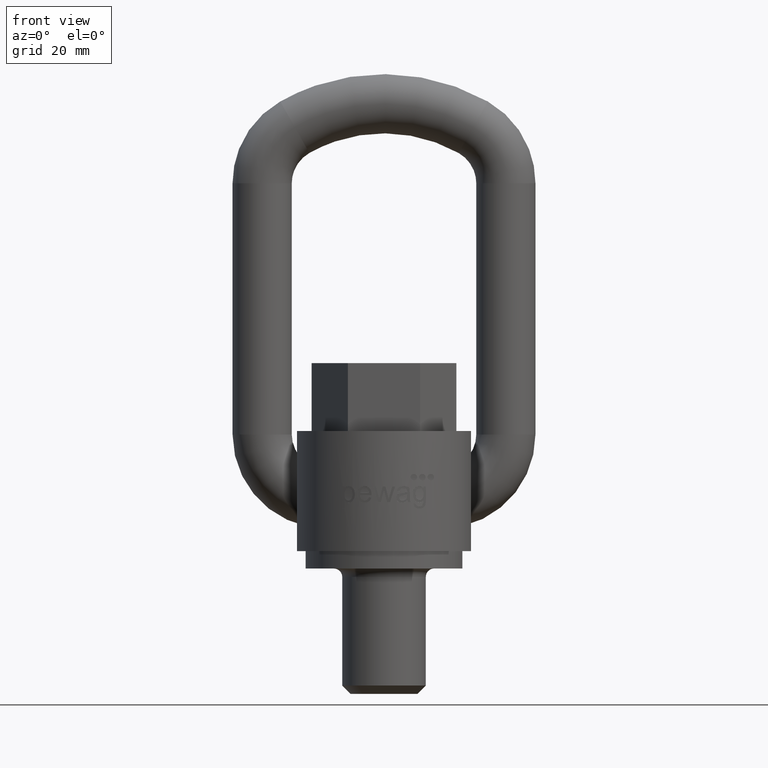
[diagram: clean part render]
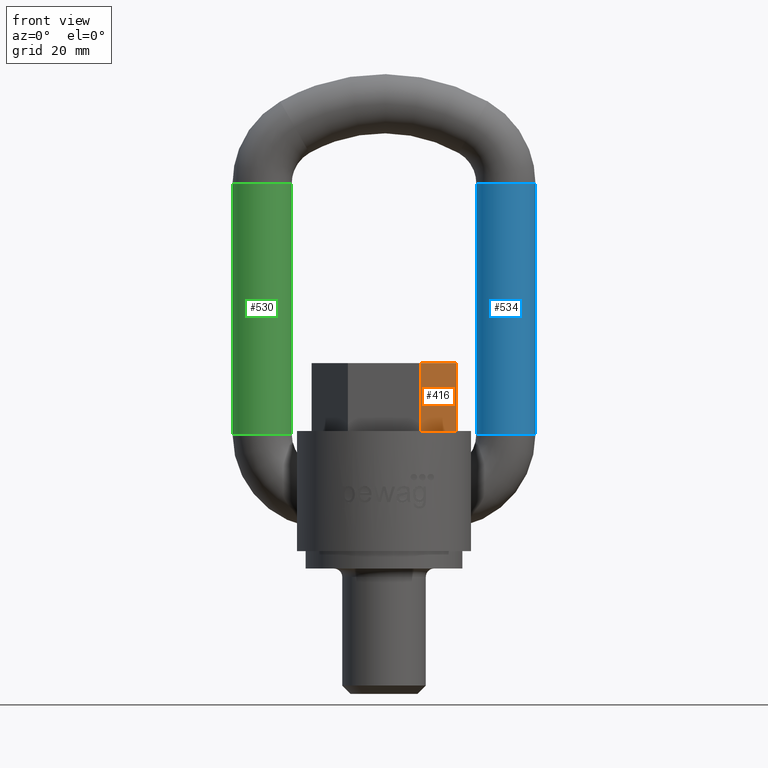
[diagram: same view with three faces highlighted in distinct colors, each labeled with its STEP entity id]
A machine part, front view with three faces highlighted in distinct colors.
Their STEP definitions:

[orange] entity #416 — the highlighted planar face has unit normal (-0.866, 0.5, 0).
#249=FACE_OUTER_BOUND('',#647,.T.);
#354=PLANE('',#2462);
#416=ADVANCED_FACE('',(#249),#354,.F.);
#647=EDGE_LOOP('',(#1232,#1233,#1234,#1235));
#803=LINE('',#3830,#929);
#808=LINE('',#3840,#934);
#810=LINE('',#3844,#936);
#811=LINE('',#3846,#937);
#929=VECTOR('',#2652,1.);
#934=VECTOR('',#2661,1.);
#936=VECTOR('',#2665,1.);
#937=VECTOR('',#2666,1.);
#1232=ORIENTED_EDGE('',*,*,#2026,.T.);
#1233=ORIENTED_EDGE('',*,*,#2033,.F.);
#1234=ORIENTED_EDGE('',*,*,#2034,.F.);
#1235=ORIENTED_EDGE('',*,*,#2031,.T.);
#1812=VERTEX_POINT('',#3829);
#1813=VERTEX_POINT('',#3831);
#1816=VERTEX_POINT('',#3841);
#1817=VERTEX_POINT('',#3845);
#2026=EDGE_CURVE('',#1813,#1812,#803,.T.);
#2031=EDGE_CURVE('',#1816,#1813,#808,.T.);
#2033=EDGE_CURVE('',#1817,#1812,#810,.T.);
#2034=EDGE_CURVE('',#1816,#1817,#811,.T.);
#2462=AXIS2_PLACEMENT_3D('',#3847,#2667,#2668);
#2652=DIRECTION('',(0.5,0.866025403784438,0.));
#2661=DIRECTION('',(0.,0.,-1.));
#2665=DIRECTION('',(0.,0.,-1.));
#2666=DIRECTION('',(0.5,0.866025403784438,0.));
#2667=DIRECTION('',(-0.866025403784439,0.5,0.));
#2668=DIRECTION('',(-0.5,-0.866025403784439,0.));
#3829=CARTESIAN_POINT('',(20.7846096908265,-2.08166817117217E-14,34.5));
#3830=CARTESIAN_POINT('',(10.3923048454133,-18.,34.5));
#3831=CARTESIAN_POINT('',(10.3923048454133,-18.,34.5));
#3840=CARTESIAN_POINT('',(10.3923048454133,-18.,54.));
#3841=CARTESIAN_POINT('',(10.3923048454133,-18.,54.));
#3844=CARTESIAN_POINT('',(20.7846096908265,-2.08166817117217E-14,54.));
#3845=CARTESIAN_POINT('',(20.7846096908265,-2.08166817117217E-14,54.));
#3846=CARTESIAN_POINT('',(10.3923048454133,-18.,54.));
#3847=CARTESIAN_POINT('',(10.3923048454133,-18.,54.));

[blue] entity #534 — the highlighted cylindrical surface (bore or boss wall) has radius 8.5 mm, axis along (0, 0, -1).
#534=ADVANCED_FACE('',(#623,#624),#552,.T.);
#552=CYLINDRICAL_SURFACE('',#2549,8.5);
#623=FACE_BOUND('',#785,.T.);
#624=FACE_BOUND('',#786,.T.);
#785=EDGE_LOOP('',(#1726));
#786=EDGE_LOOP('',(#1727));
#1113=CIRCLE('',#2535,8.5);
#1119=CIRCLE('',#2547,8.5);
#1726=ORIENTED_EDGE('',*,*,#2241,.F.);
#1727=ORIENTED_EDGE('',*,*,#2235,.T.);
#1931=VERTEX_POINT('',#5181);
#1937=VERTEX_POINT('',#5199);
#2235=EDGE_CURVE('',#1931,#1931,#1113,.T.);
#2241=EDGE_CURVE('',#1937,#1937,#1119,.T.);
#2535=AXIS2_PLACEMENT_3D('',#5180,#2959,#2960);
#2547=AXIS2_PLACEMENT_3D('',#5198,#2983,#2984);
#2549=AXIS2_PLACEMENT_3D('',#5201,#2987,#2988);
#2959=DIRECTION('',(1.6212657631587E-15,0.,1.));
#2960=DIRECTION('',(1.,0.,-1.63268091856641E-15));
#2983=DIRECTION('',(1.6212657631587E-15,0.,1.));
#2984=DIRECTION('',(1.,0.,-1.63268091856641E-15));
#2987=DIRECTION('',(0.,0.,-1.));
#2988=DIRECTION('',(-1.,0.,0.));
#5180=CARTESIAN_POINT('',(35.,27.5,33.4999999999999));
#5181=CARTESIAN_POINT('',(43.5,27.5,33.4999999999999));
#5198=CARTESIAN_POINT('',(35.,27.5,105.654759474226));
#5199=CARTESIAN_POINT('',(43.5,27.5,105.654759474226));
#5201=CARTESIAN_POINT('',(35.,27.5,105.654759474226));

[green] entity #530 — the highlighted cylindrical surface (bore or boss wall) has radius 8.5 mm, axis along (0, 0, -1).
#530=ADVANCED_FACE('',(#615,#616),#551,.T.);
#551=CYLINDRICAL_SURFACE('',#2542,8.5);
#615=FACE_BOUND('',#777,.T.);
#616=FACE_BOUND('',#778,.T.);
#777=EDGE_LOOP('',(#1718));
#778=EDGE_LOOP('',(#1719));
#1115=CIRCLE('',#2539,8.5);
#1116=CIRCLE('',#2541,8.5);
#1718=ORIENTED_EDGE('',*,*,#2238,.T.);
#1719=ORIENTED_EDGE('',*,*,#2237,.F.);
#1933=VERTEX_POINT('',#5187);
#1934=VERTEX_POINT('',#5190);
#2237=EDGE_CURVE('',#1933,#1933,#1115,.T.);
#2238=EDGE_CURVE('',#1934,#1934,#1116,.T.);
#2539=AXIS2_PLACEMENT_3D('',#5186,#2967,#2968);
#2541=AXIS2_PLACEMENT_3D('',#5189,#2971,#2972);
#2542=AXIS2_PLACEMENT_3D('',#5191,#2973,#2974);
#2967=DIRECTION('',(-6.10622663543836E-16,0.,-1.));
#2968=DIRECTION('',(-1.,0.,8.16340459283203E-16));
#2971=DIRECTION('',(-6.10622663543836E-16,0.,-1.));
#2972=DIRECTION('',(-1.,0.,0.));
#2973=DIRECTION('',(0.,0.,-1.));
#2974=DIRECTION('',(-1.,0.,0.));
#5186=CARTESIAN_POINT('',(-35.,27.5,33.5));
#5187=CARTESIAN_POINT('',(-43.5,27.5,33.5));
#5189=CARTESIAN_POINT('',(-35.,27.5,105.654759474227));
#5190=CARTESIAN_POINT('',(-43.5,27.5,105.654759474227));
#5191=CARTESIAN_POINT('',(-35.,27.5,105.654759474227));